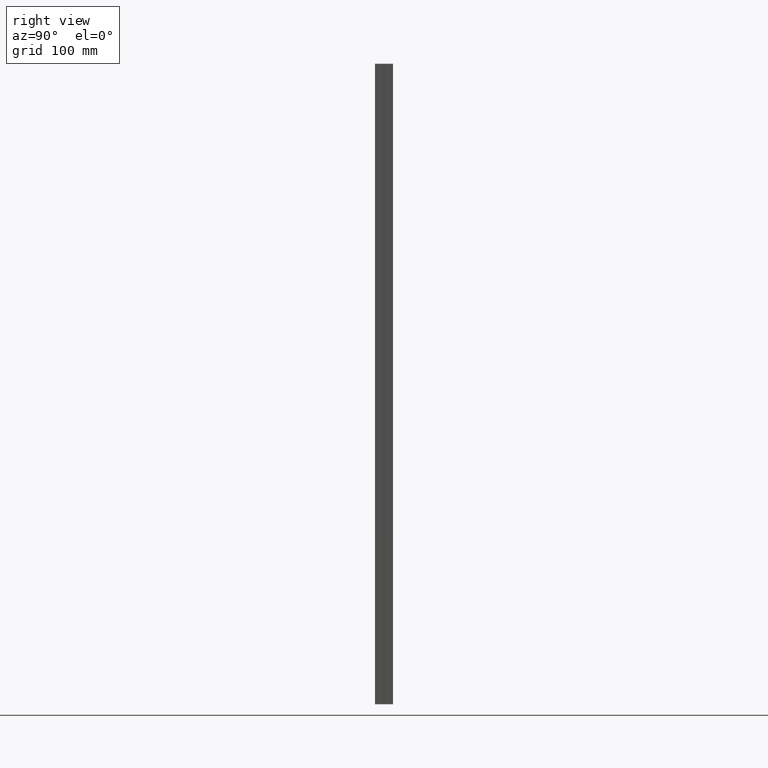
[diagram: clean part render]
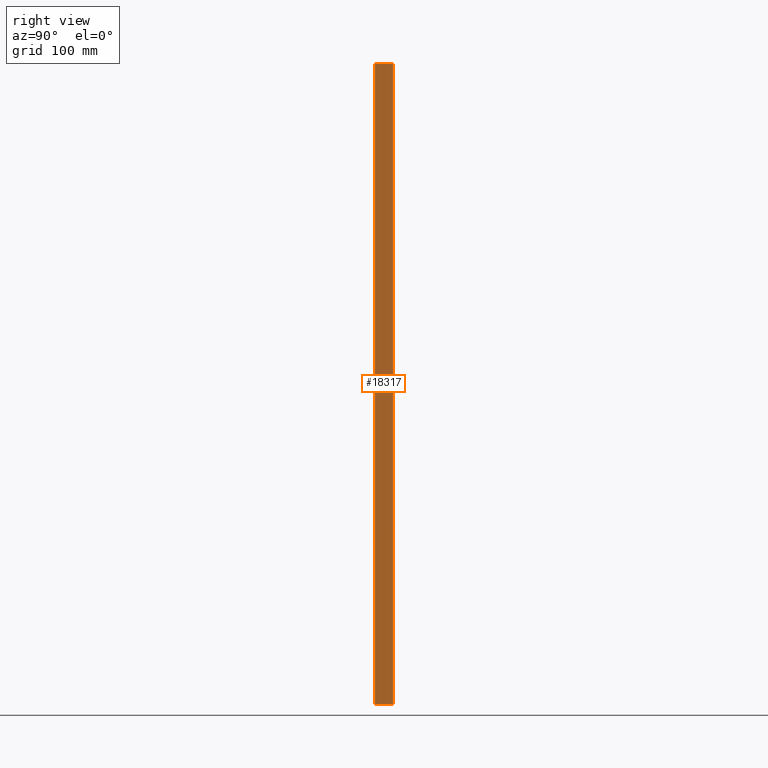
[diagram: same view with one face highlighted and labeled with its STEP entity id]
A machine part, right view. The second image highlights one B-rep face of the part: STEP entity #18317.
In plain terms, the highlighted planar face has unit normal (1, -0, -0).
Its self-contained STEP definition (entity closure, byte-faithful):
#570 = VERTEX_POINT ( 'NONE', #50616 ) ;
#922 = EDGE_CURVE ( 'NONE', #14874, #30828, #52116, .T. ) ;
#1603 = CARTESIAN_POINT ( 'NONE',  ( 489.9999999999999400, 12.49999999999986700, -890.0000000000000000 ) ) ;
#3951 = VECTOR ( 'NONE', #46700, 1000.000000000000000 ) ;
#7913 = EDGE_LOOP ( 'NONE', ( #35244, #60342, #17805, #26367 ) ) ;
#11213 = CARTESIAN_POINT ( 'NONE',  ( 490.0000000000000000, -12.50000000000000000, -890.0000000000000000 ) ) ;
#14522 = LINE ( 'NONE', #1603, #3951 ) ;
#14874 = VERTEX_POINT ( 'NONE', #21532 ) ;
#16453 = VECTOR ( 'NONE', #20948, 1000.000000000000000 ) ;
#17805 = ORIENTED_EDGE ( 'NONE', *, *, #19973, .F. ) ;
#17981 = DIRECTION ( 'NONE',  ( 1.247441600702423200E-016, 0.0000000000000000000, 1.000000000000000000 ) ) ;
#18317 = ADVANCED_FACE ( 'NONE', ( #62643 ), #55034, .T. ) ;
#19973 = EDGE_CURVE ( 'NONE', #570, #30828, #37647, .T. ) ;
#20019 = CARTESIAN_POINT ( 'NONE',  ( 490.0000000000001100, -12.50000000000000000, -1.110223024625156500E-013 ) ) ;
#20340 = CARTESIAN_POINT ( 'NONE',  ( 489.9999999999999400, 12.49999999999986700, -890.0000000000000000 ) ) ;
#20948 = DIRECTION ( 'NONE',  ( 1.247441600702423200E-016, 0.0000000000000000000, 1.000000000000000000 ) ) ;
#21532 = CARTESIAN_POINT ( 'NONE',  ( 490.0000000000001700, 12.50000000000000000, 8.326672684688674100E-014 ) ) ;
#21827 = VECTOR ( 'NONE', #24542, 1000.000000000000000 ) ;
#22036 = VECTOR ( 'NONE', #17981, 1000.000000000000000 ) ;
#22805 = EDGE_CURVE ( 'NONE', #37604, #14874, #40957, .T. ) ;
#24542 = DIRECTION ( 'NONE',  ( -3.061616997868383600E-016, -1.000000000000000000, -3.061616997868382600E-016 ) ) ;
#26348 = AXIS2_PLACEMENT_3D ( 'NONE', #20340, #59086, #35369 ) ;
#26367 = ORIENTED_EDGE ( 'NONE', *, *, #38787, .T. ) ;
#27696 = CARTESIAN_POINT ( 'NONE',  ( 490.0000000000000000, 12.50000000000000000, -890.0000000000000000 ) ) ;
#30828 = VERTEX_POINT ( 'NONE', #20019 ) ;
#35244 = ORIENTED_EDGE ( 'NONE', *, *, #22805, .T. ) ;
#35369 = DIRECTION ( 'NONE',  ( 3.061616997868383100E-016, 1.000000000000000000, 0.0000000000000000000 ) ) ;
#37604 = VERTEX_POINT ( 'NONE', #54976 ) ;
#37647 = LINE ( 'NONE', #11213, #16453 ) ;
#37916 = CARTESIAN_POINT ( 'NONE',  ( 490.0000000000000600, 12.49999999999959500, 0.0000000000000000000 ) ) ;
#38787 = EDGE_CURVE ( 'NONE', #570, #37604, #14522, .T. ) ;
#40957 = LINE ( 'NONE', #27696, #22036 ) ;
#46700 = DIRECTION ( 'NONE',  ( 3.061616997868382600E-016, 1.000000000000000000, -3.061616997868383100E-016 ) ) ;
#50616 = CARTESIAN_POINT ( 'NONE',  ( 490.0000000000000000, -12.50000000000000000, -890.0000000000000000 ) ) ;
#52116 = LINE ( 'NONE', #37916, #21827 ) ;
#54976 = CARTESIAN_POINT ( 'NONE',  ( 490.0000000000000000, 12.50000000000000000, -890.0000000000000000 ) ) ;
#55034 = PLANE ( 'NONE',  #26348 ) ;
#59086 = DIRECTION ( 'NONE',  ( 1.000000000000000000, -3.061616997868383100E-016, -1.247441600702423200E-016 ) ) ;
#60342 = ORIENTED_EDGE ( 'NONE', *, *, #922, .T. ) ;
#62643 = FACE_OUTER_BOUND ( 'NONE', #7913, .T. ) ;